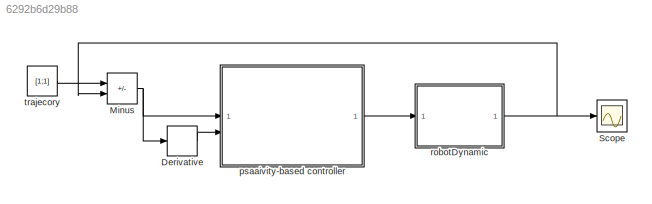
MODEL slx_6292b6d29b88
KIND model
CONFIG AbsTol = auto
CONFIG EnableMultiTasking = off
CONFIG FixedStep = 0.01
CONFIG MaxStep = auto
CONFIG MinStep = auto
CONFIG RelTol = 1e-3
CONFIG SampleTimeConstraint = Unconstrained
CONFIG SolverName = ode1
CONFIG StartTime = 0.0
CONFIG StopTime = 5
BLOCK [Derivative] Derivative
BLOCK [Sum] Minus
  IconShape = rectangular
  Inputs = +-
BLOCK [Scope] Scope
  Floating = off
  NumInputPorts = 1
  ScopeSpecificationString = Simulink.scopes.TimeScopeBlockCfg('CurrentConfiguration', extmgr.ConfigurationSet(extmgr.Configuration('Core','General UI',true),extmgr.Configuration('Core','Source UI',true),extmgr.Configuration('Sources','WiredSimulink',true),extmgr.Configuration('Visuals','Time Domain',true,'SerializedDisplays',{struct('MinYLimReal','-0.19733','MaxYLimReal','1.77594','YLabelReal','','MinYLimMag','0.00000','MaxY...<+1469ch>
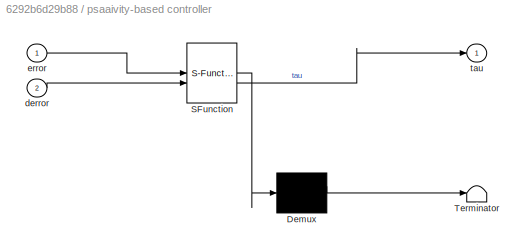
BLOCK [SubSystem] psaaivity-based controller
  ErrorFcn = Stateflow.Translate.translate
  PermitHierarchicalResolution = ExplicitOnly
  SFBlockType = MATLAB Function
  TreatAsAtomicUnit = on
BLOCK [Demux] psaaivity-based controller/ Demux 
  Outputs = 1
BLOCK [S-Function] psaaivity-based controller/ SFunction 
  EnableBusSupport = on
  FunctionName = sf_sfun
  PortCounts = [2 2]
  SFcnIsStateOwnerBlock = off
  SFunctionDeploymentMode = off
  Tag = Stateflow S-Function 2
BLOCK [Terminator] psaaivity-based controller/ Terminator 
BLOCK [Inport] psaaivity-based controller/derror
  Port = 2
BLOCK [Inport] psaaivity-based controller/error
BLOCK [Outport] psaaivity-based controller/tau
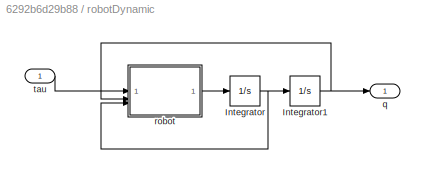
BLOCK [SubSystem] robotDynamic
BLOCK [Integrator] robotDynamic/Integrator
BLOCK [Integrator] robotDynamic/Integrator1
BLOCK [Outport] robotDynamic/q
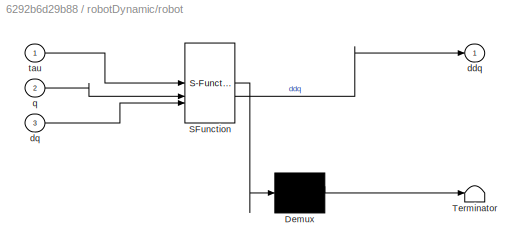
BLOCK [SubSystem] robotDynamic/robot
  ErrorFcn = Stateflow.Translate.translate
  PermitHierarchicalResolution = ExplicitOnly
  SFBlockType = MATLAB Function
  TreatAsAtomicUnit = on
BLOCK [Demux] robotDynamic/robot/ Demux 
  Outputs = 1
BLOCK [S-Function] robotDynamic/robot/ SFunction 
  EnableBusSupport = on
  FunctionName = sf_sfun
  PortCounts = [3 2]
  SFcnIsStateOwnerBlock = off
  SFunctionDeploymentMode = off
  Tag = Stateflow S-Function 1
BLOCK [Terminator] robotDynamic/robot/ Terminator 
BLOCK [Outport] robotDynamic/robot/ddq
BLOCK [Inport] robotDynamic/robot/dq
  Port = 3
BLOCK [Inport] robotDynamic/robot/q
  Port = 2
BLOCK [Inport] robotDynamic/robot/tau
BLOCK [Inport] robotDynamic/tau
BLOCK [Constant] trajecory
  Value = [1;1]
LINE Derivative:1 -> psaaivity-based controller:2
NET Minus:1 -> Derivative:1, psaaivity-based controller:1
LINE psaaivity-based controller:1 -> robotDynamic:1
NET robotDynamic/Integrator1:1 -> robotDynamic/q:1, robotDynamic/robot:2
NET robotDynamic/Integrator:1 -> robotDynamic/Integrator1:1, robotDynamic/robot:3
LINE robotDynamic/robot:1 -> robotDynamic/Integrator:1
LINE robotDynamic/tau:1 -> robotDynamic/robot:1
NET robotDynamic:1 -> Minus:2, Scope:1
LINE trajecory:1 -> Minus:1
note: NET lines group one-source signal fan-out (src -> all destinations, sorted); 1:1 wires keep LINE
CHART psaaivity-based controller states=1 transitions=1
  STATE_LABEL 'eML_blk_kernel()'
  STATE_LABEL 'SCRIPT:\nfunction tau = controller(error, derror)\n\nkp = [10, 0;\n       0, 4];\n\n\nkd = [1, 0;\n        0, 0.3];\n\ntau = kp * error + kd * derror;'
CHART robotDynamic/robot states=1 transitions=1
  STATE_LABEL 'eML_blk_kernel()'
  STATE_LABEL 'SCRIPT:\nfunction ddq = robot(tau, q, dq)\n\nI1 = 0.05;\nm1 = 1.5;\nlg1 = 0.2;\n\nI2 = 0.01;\nm2 = 0.5;\nlg2 = 0.2;\n\ng = 9.8;\n% g = 0;\n\na1 = I1 + I2 + m2 * lg1 * lg1;\na2 = m2 * lg1 * lg2;\na3 = I2 ;\n\nL = [lg1, 0;\n        0, lg2];\n\nM = L * [a1 + 2 * a2 * cos(q(2)), a3 - a2 * cos(q(2));\n        a3 + a2 * cos(q(2)), a3 / lg2];\n\nh = L * [-a2 * sin(q(2)) * (2 * dq(1) * dq(2) + dq(2) * dq(2)) - (m1 + m2) * lg1 * ...<+147ch>'
CHART  states=0 transitions=0
CHART  states=0 transitions=0
